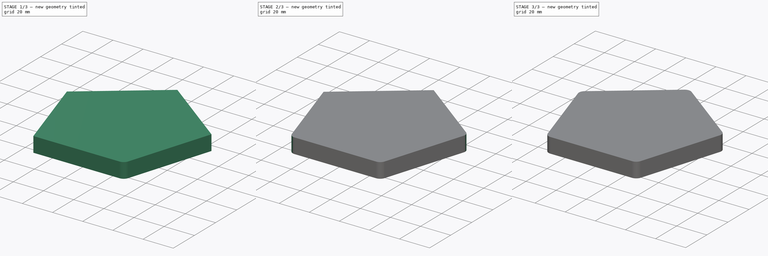
[diagram: build sequence overview — one tinted view per stage of 3, left to right]
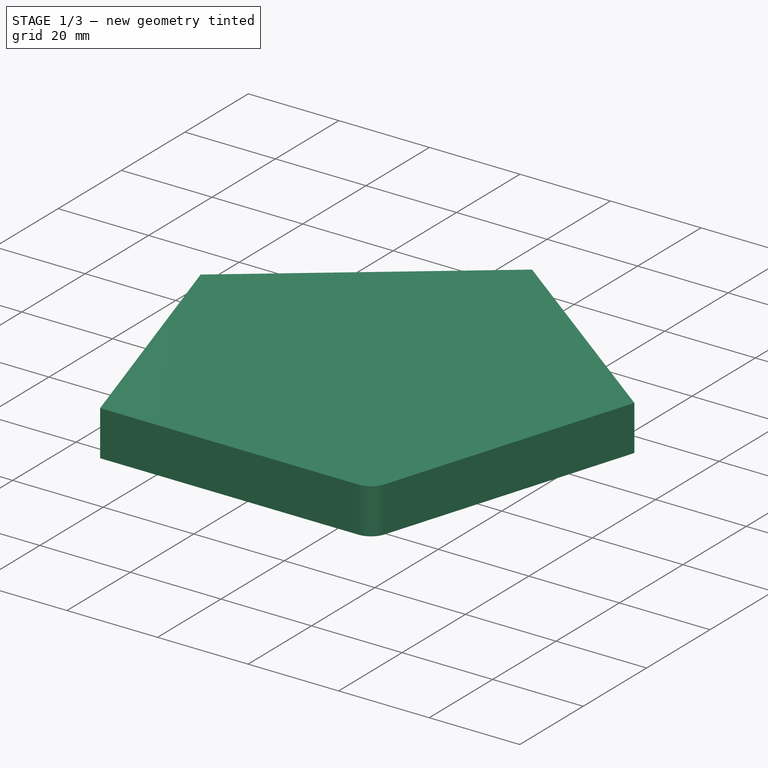
[diagram: stage 1 of 3 — iso view after this stage's code; geometry added in this stage tinted green]
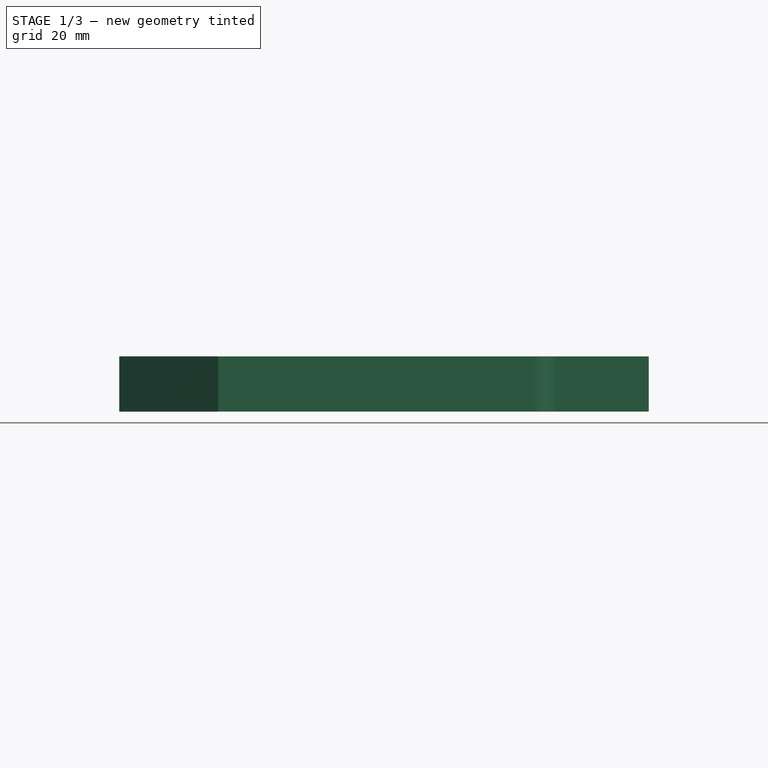
[diagram: stage 1 of 3 — front view after this stage's code; geometry added in this stage tinted green]
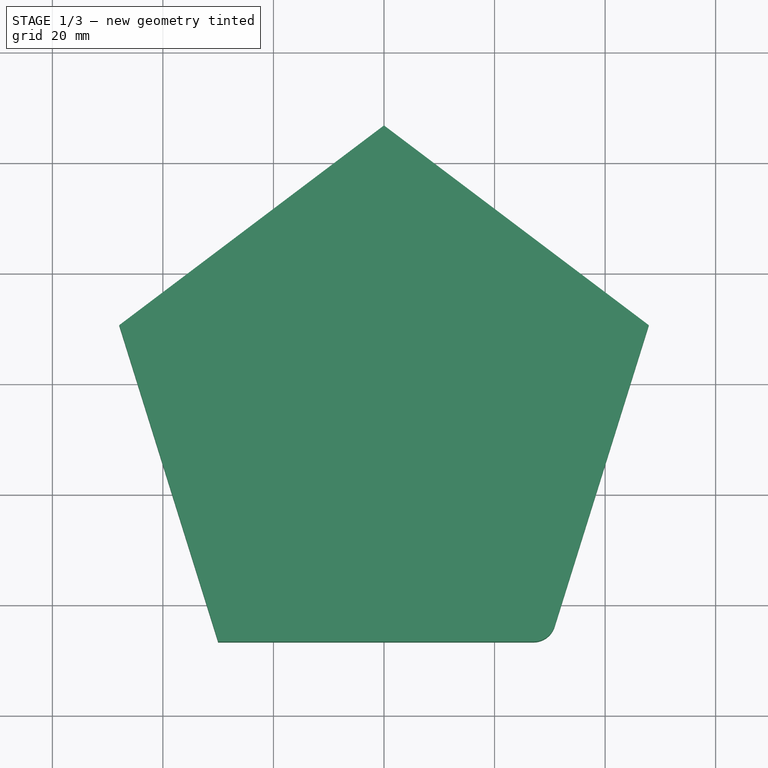
[diagram: stage 1 of 3 — top view after this stage's code; geometry added in this stage tinted green]
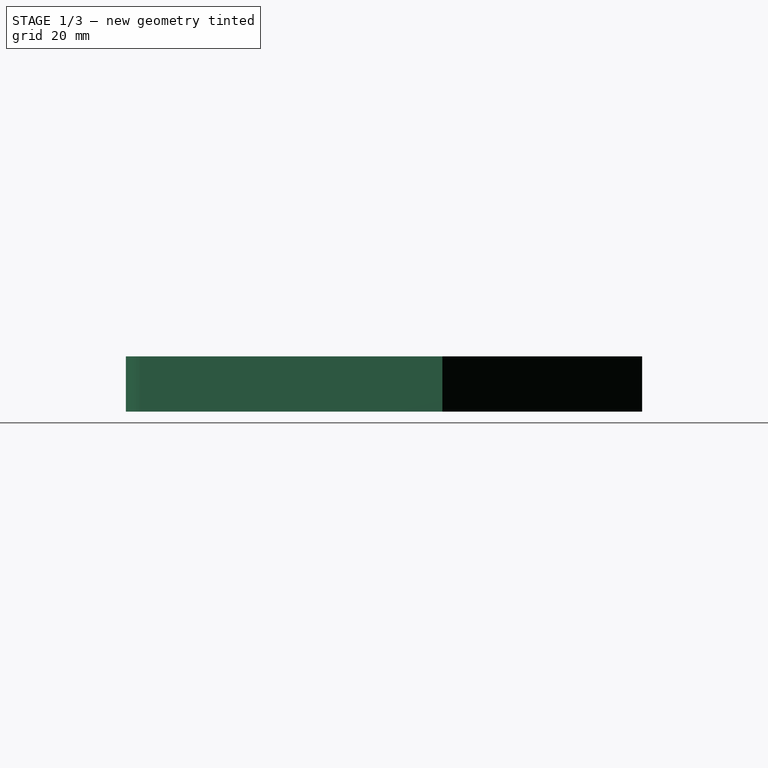
[diagram: stage 1 of 3 — right view after this stage's code; geometry added in this stage tinted green]
FCSTD DOCUMENT  (FreeCAD 0.21R33694 (Git))
Label: OJT1_T20R02_pentagon
License: All rights reserved
LicenseURL: https://en.wikipedia.org/wiki/All_rights_reserved
objects: Part::Fillet×5, Sketcher::SketchObject×1, PartDesign::Pad×1, PartDesign::Body×1
note: 9 computed .brp shape members not serialized (recipe doc carries the construction recipe); baked Part::Feature solids carry a one-line shape summary decoded from their .brp

FEATURE [Sketcher::SketchObject] Sketch
  FullyConstrained = false
  MapMode = 5
  Support = -> [XY_Plane]
  sketch-geometry (8):
    g0: LineSegment StartX=-47.8962 StartY=10.5654 StartZ=0 EndX=0 EndY=46.7035 EndZ=0
    g1: LineSegment StartX=0 StartY=46.7035 StartZ=0 EndX=47.8962 EndY=10.5654 EndZ=0
    g2: LineSegment StartX=47.8962 StartY=10.5654 StartZ=0 EndX=30 EndY=-46.7035 EndZ=0
    g3: LineSegment StartX=30 StartY=-46.7035 StartZ=0 EndX=-30 EndY=-46.7035 EndZ=0
    g4: LineSegment StartX=-30 StartY=-46.7035 StartZ=0 EndX=-47.8962 EndY=10.5654 EndZ=0
    g5: GeomPoint X=7e-16 Y=-46.7035 Z=0
    g6: LineSegment StartX=0.430002 StartY=-5.13669 StartZ=0 EndX=-47.8962 EndY=10.5654 EndZ=0
    g7: LineSegment StartX=0.381365 StartY=-5.12283 StartZ=0 EndX=-29.4859 EndY=-46.2315 EndZ=0
  constraints (16):
    c: Coincident(g0,g1)
    c: Coincident(g1,g2)
    c: Coincident(g2,g3)
    c: Coincident(g3,g4)
    c: Coincident(g4,g0)
    c: Equal(g4,g0)
    c: Equal(g0,g1)
    c: Equal(g2,g3)
    c: DistanceX(g3,g2) = 60
    c: Symmetric(g0,g1,g-2)
    c: Symmetric(g3,g2,g-2)
    c: PointOnObject(g5,g3)
    c: Symmetric(g0,g5,g-1)
    c: Coincident(g6,g0)
    c: Angle(g6,g7) = 1.25664
    c: Equal(g6,g7)
FEATURE [PartDesign::Pad] Pad
  Direction = (0,0,1)
  Length = 10
  Length2 = 10
  Profile = -> Sketch
  ReferenceAxis = -> Sketch [N_Axis]
  Type = 0
FEATURE [PartDesign::Body] Body
  Group = -> [Sketch,Pad]
  Origin = -> Origin
  Tip = -> Pad
FEATURE [Part::Fillet] Fillet
  Base = -> Pad
  Edges = 1 edges r=4: [Edge8]
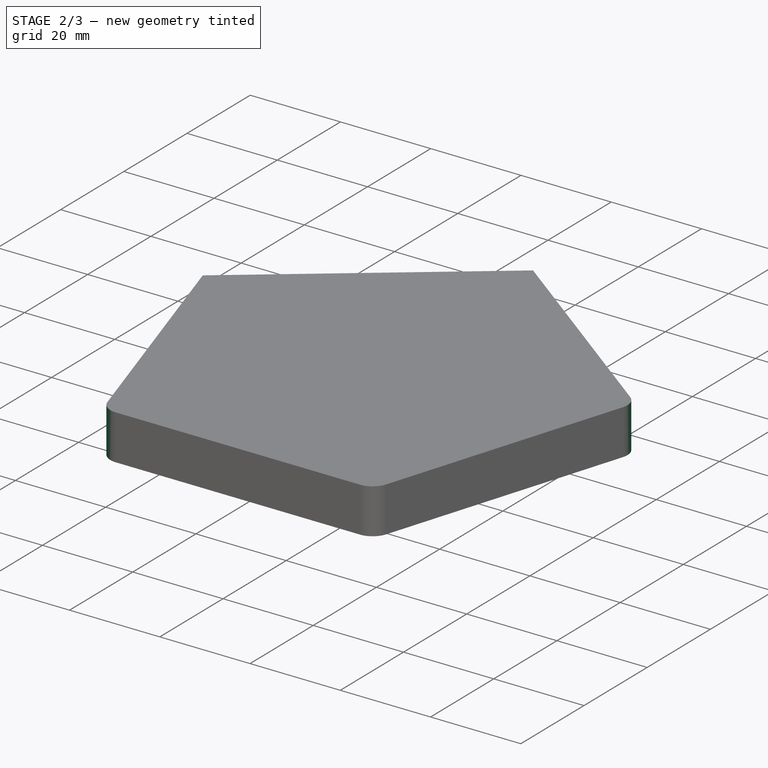
[diagram: stage 2 of 3 — iso view after this stage's code; geometry added in this stage tinted green]
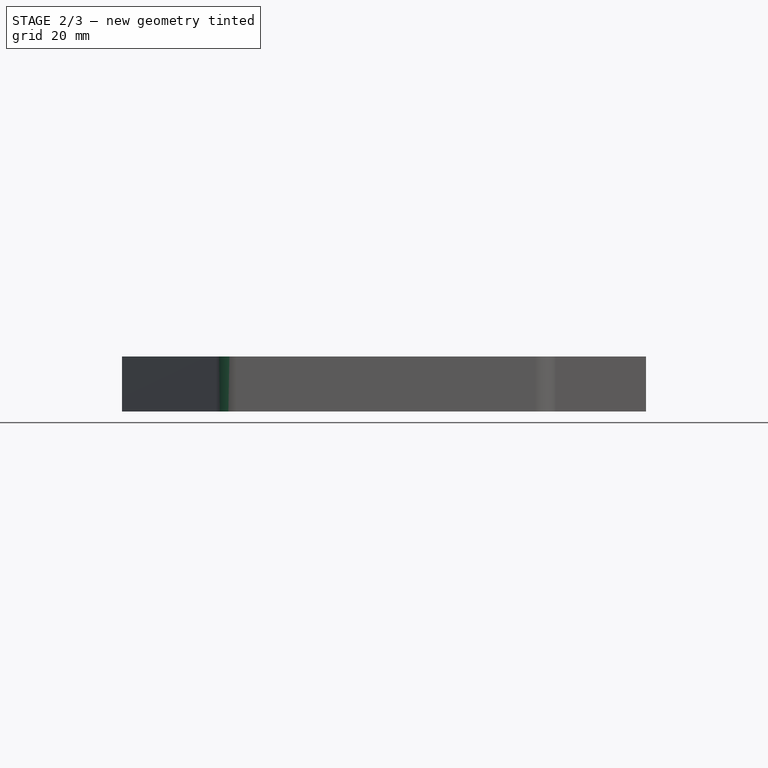
[diagram: stage 2 of 3 — front view after this stage's code; geometry added in this stage tinted green]
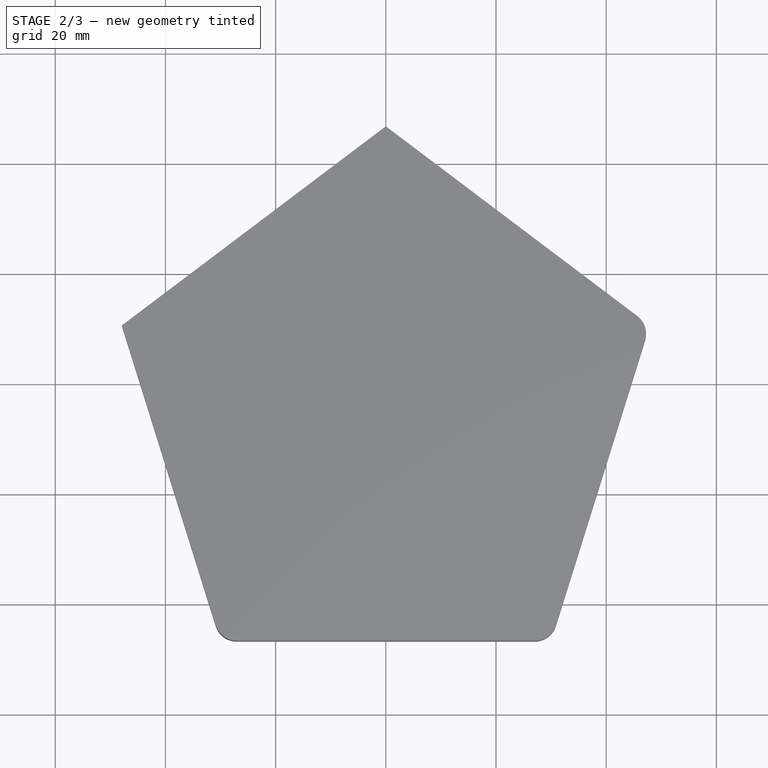
[diagram: stage 2 of 3 — top view after this stage's code; geometry added in this stage tinted green]
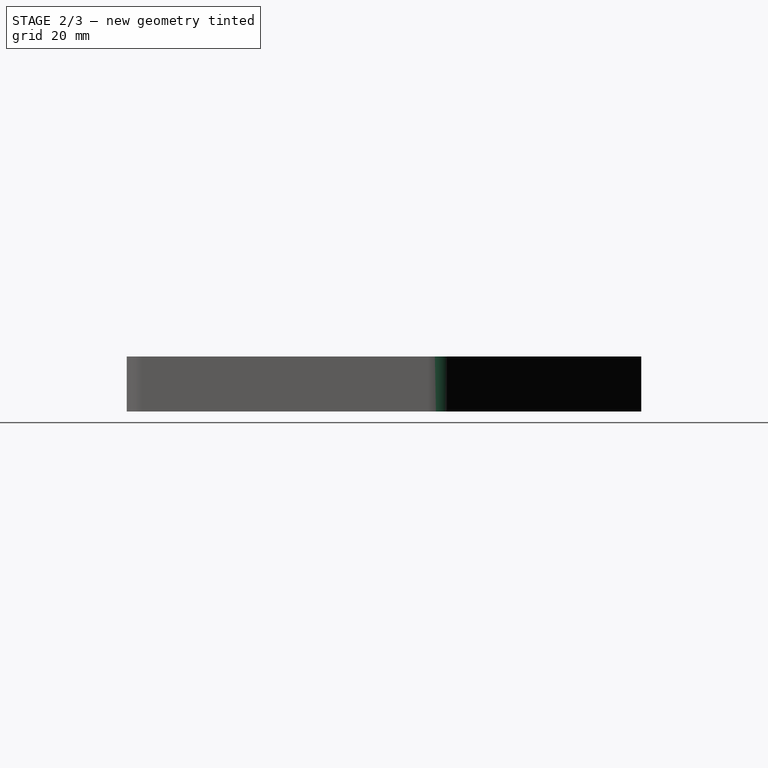
[diagram: stage 2 of 3 — right view after this stage's code; geometry added in this stage tinted green]
FEATURE [Part::Fillet] Fillet001
  Base = -> Fillet
  Edges = 1 edges r=4: [Edge2]
FEATURE [Part::Fillet] Fillet002
  Base = -> Fillet001
  Edges = 1 edges r=4: [Edge20]
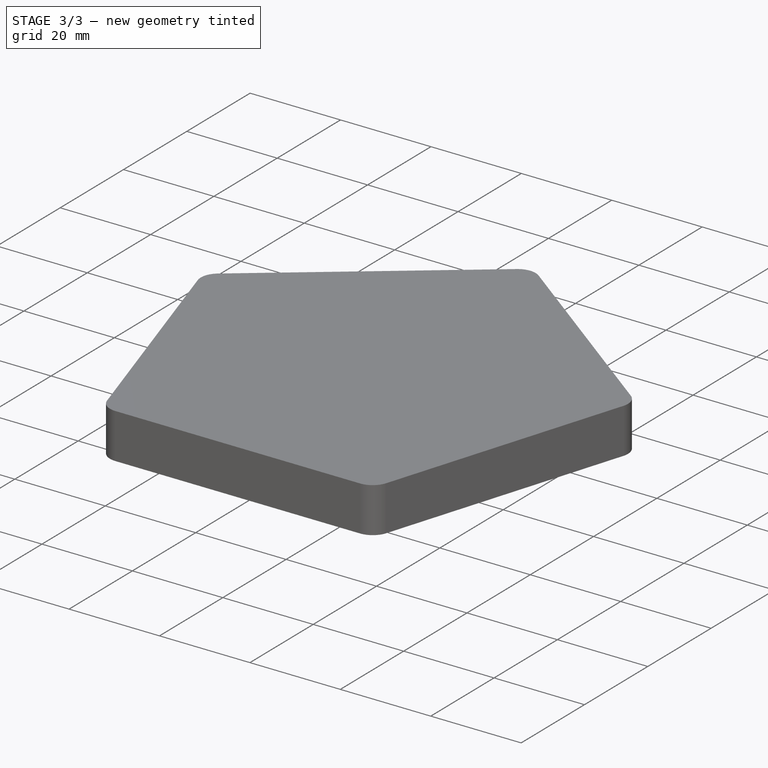
[diagram: stage 3 of 3 — iso view after this stage's code; geometry added in this stage tinted green]
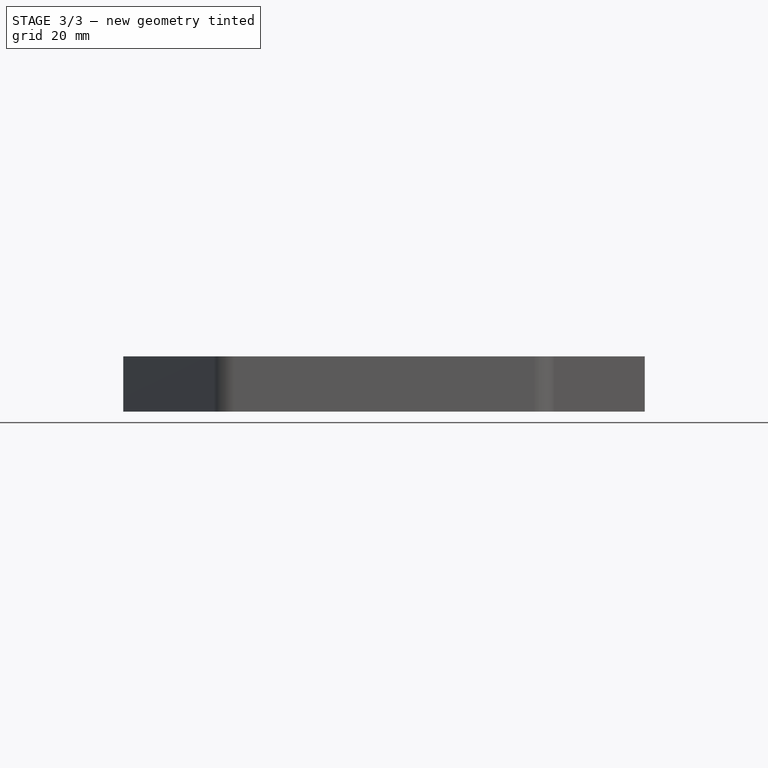
[diagram: stage 3 of 3 — front view after this stage's code; geometry added in this stage tinted green]
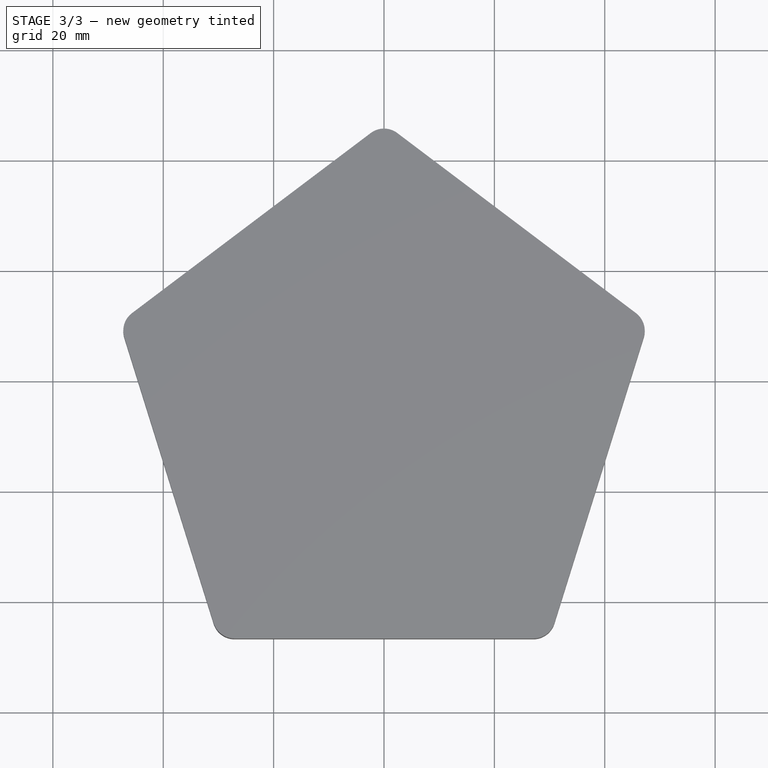
[diagram: stage 3 of 3 — top view after this stage's code; geometry added in this stage tinted green]
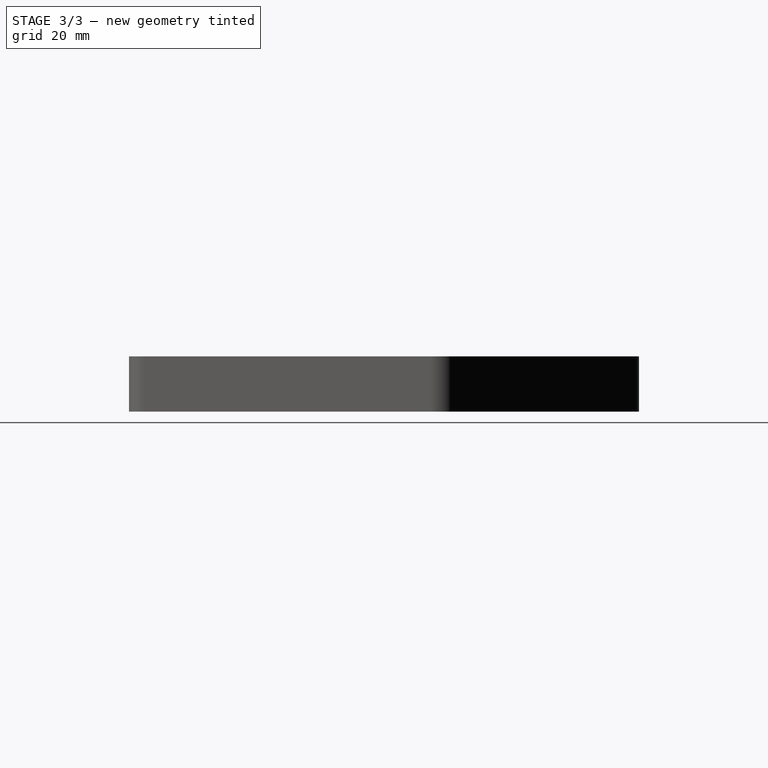
[diagram: stage 3 of 3 — right view after this stage's code; geometry added in this stage tinted green]
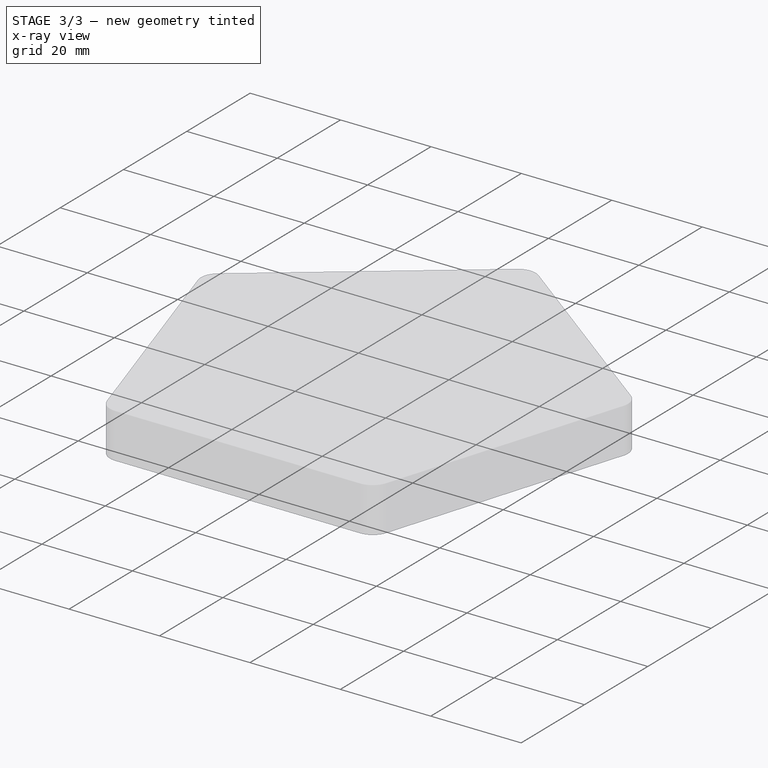
[diagram: stage 3 of 3 — x-ray composite at the iso view; earlier geometry ghosted, this stage's added geometry solid]
FEATURE [Part::Fillet] Fillet003
  Base = -> Fillet002
  Edges = 1 edges r=4: [Edge10]
FEATURE [Part::Fillet] Fillet004
  Base = -> Fillet003
  Edges = 1 edges r=4: [Edge18]
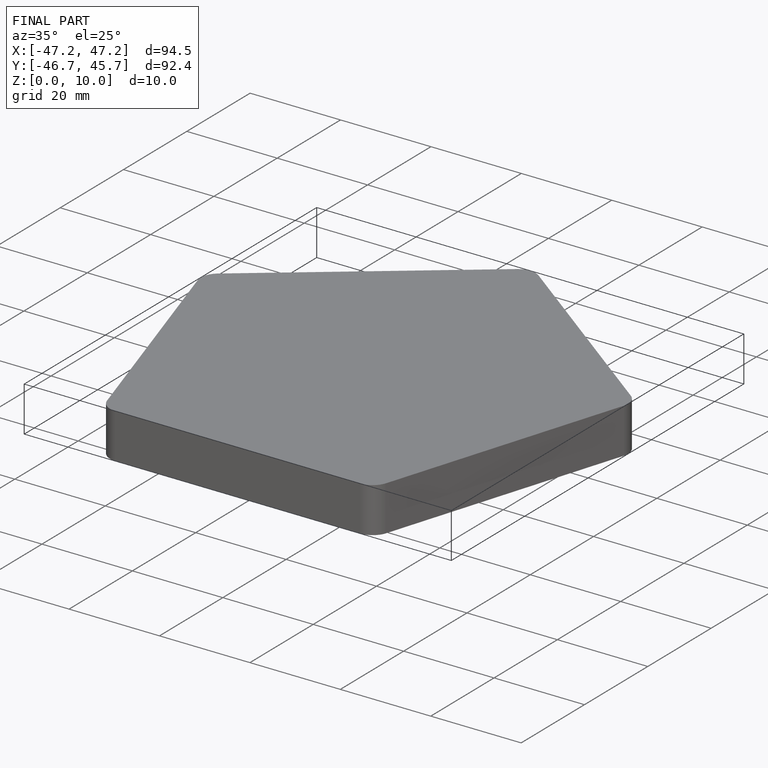
[diagram: finished part — iso view with bounding-box wireframe]
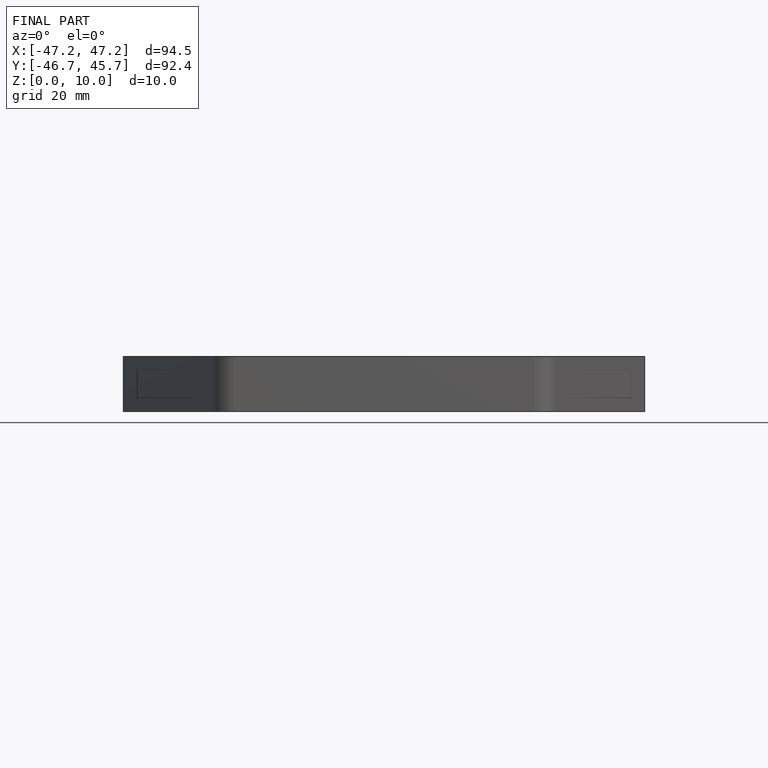
[diagram: finished part — front view with bounding-box wireframe]
